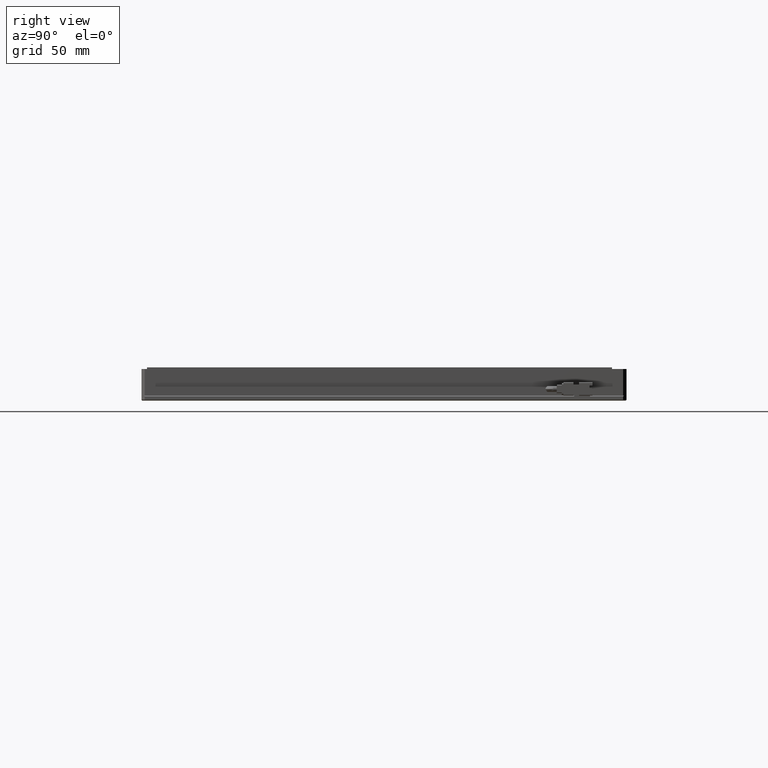
[diagram: clean part render]
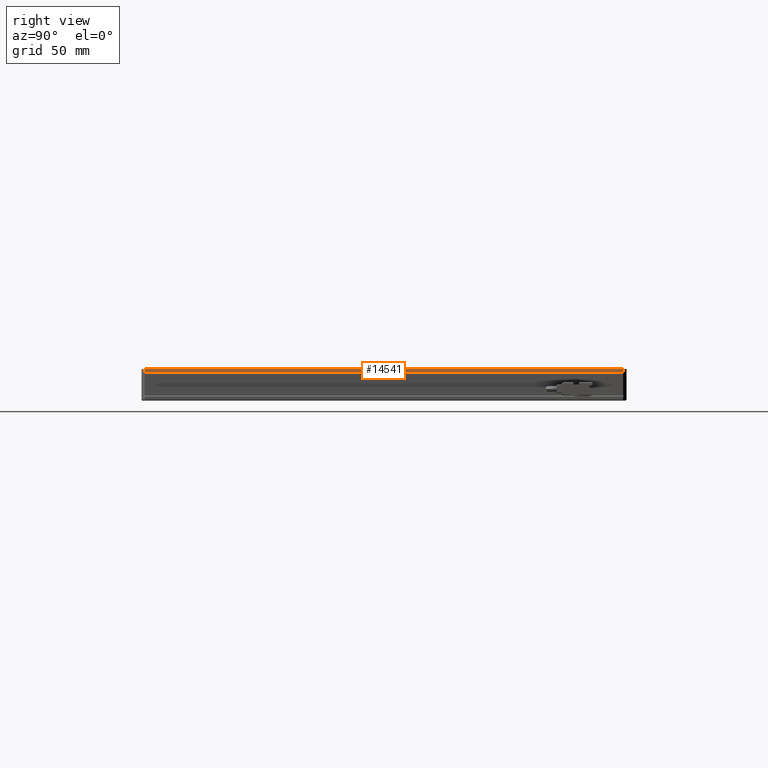
[diagram: same view with one face highlighted and labeled with its STEP entity id]
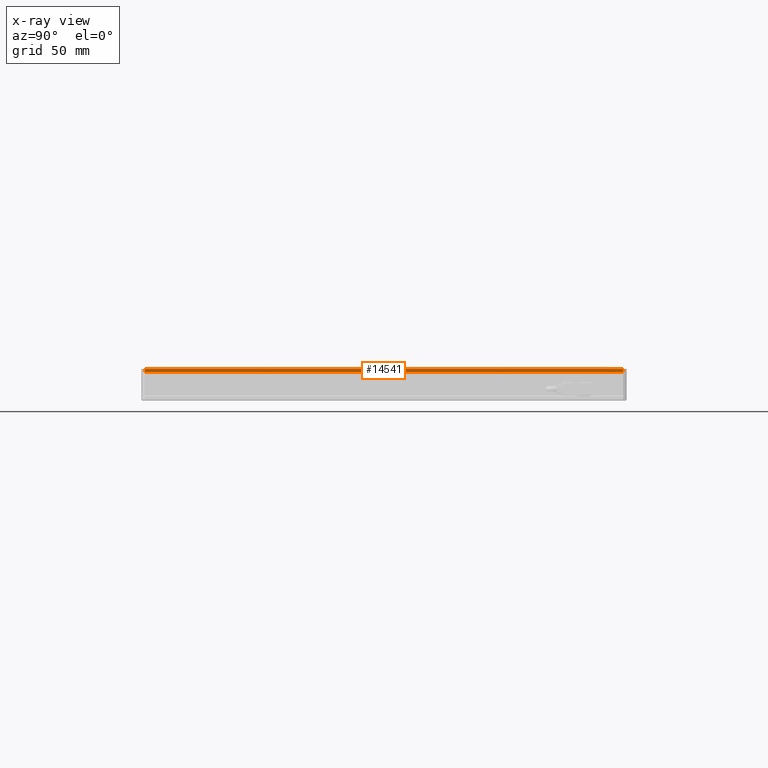
[diagram: x-ray of the same camera — body ghosted, the highlighted face saturated]
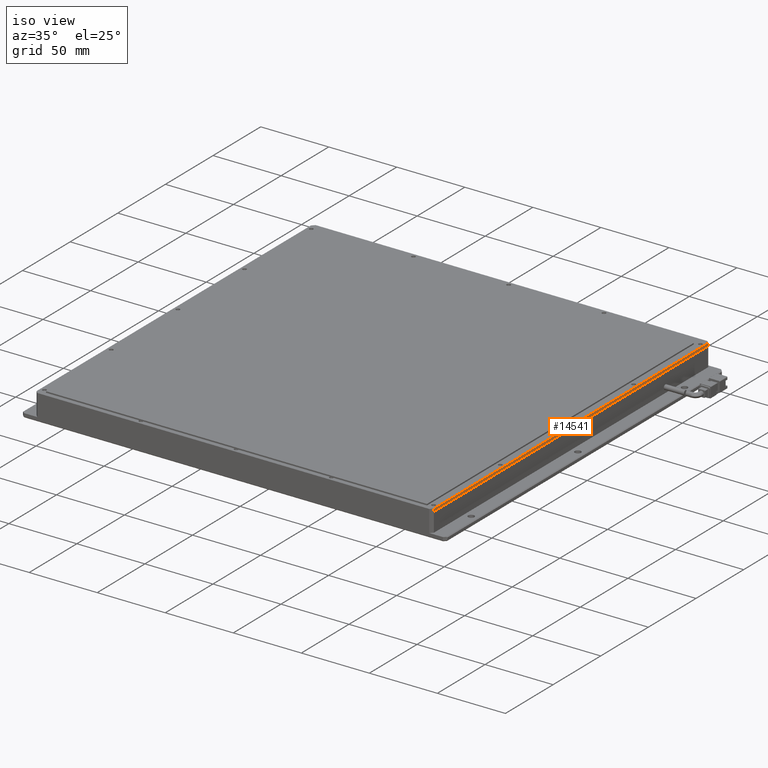
[diagram: same view with one face highlighted and labeled with its STEP entity id]
A machine part, right view. The second image highlights one B-rep face of the part: STEP entity #14541.
The next image is the same camera in x-ray: the body ghosted, the highlighted face saturated — about 0% of this face is hidden behind the body in this view.
A second angle (iso view) of the same face is appended — the face is thin or edge-on in the first view.
In plain terms, the highlighted planar face has unit normal (-1, 0, 0).
Its self-contained STEP definition (entity closure, byte-faithful):
#214 = LINE ( 'NONE', #14023, #6554 ) ;
#302 = CARTESIAN_POINT ( 'NONE',  ( 178.9193228736581300, -132.7301954307733900, 6.999999999971805700 ) ) ;
#550 = VECTOR ( 'NONE', #13134, 1000.000000000000000 ) ;
#943 = ORIENTED_EDGE ( 'NONE', *, *, #10104, .F. ) ;
#1177 = ORIENTED_EDGE ( 'NONE', *, *, #22288, .T. ) ;
#2661 = VERTEX_POINT ( 'NONE', #3936 ) ;
#3332 = EDGE_LOOP ( 'NONE', ( #1177, #17321, #943, #4284 ) ) ;
#3580 = PLANE ( 'NONE',  #4652 ) ;
#3807 = VERTEX_POINT ( 'NONE', #19174 ) ;
#3936 = CARTESIAN_POINT ( 'NONE',  ( 178.9193228736581600, 157.2698045692265800, 6.999999999971805700 ) ) ;
#4171 = LINE ( 'NONE', #23677, #12497 ) ;
#4284 = ORIENTED_EDGE ( 'NONE', *, *, #5050, .T. ) ;
#4652 = AXIS2_PLACEMENT_3D ( 'NONE', #16391, #5398, #18249 ) ;
#5050 = EDGE_CURVE ( 'NONE', #6667, #2661, #13156, .T. ) ;
#5398 = DIRECTION ( 'NONE',  ( -1.000000000000000000, 0.0000000000000000000, 0.0000000000000000000 ) ) ;
#5450 = LINE ( 'NONE', #23483, #14350 ) ;
#6554 = VECTOR ( 'NONE', #14191, 1000.000000000000000 ) ;
#6667 = VERTEX_POINT ( 'NONE', #7323 ) ;
#7323 = CARTESIAN_POINT ( 'NONE',  ( 178.9193228736581000, -130.7301954307733900, 6.999999999971805700 ) ) ;
#8157 = FACE_OUTER_BOUND ( 'NONE', #3332, .T. ) ;
#9124 = CARTESIAN_POINT ( 'NONE',  ( 178.9193228736581000, -130.7301954307734200, 8.999999999971805700 ) ) ;
#9220 = EDGE_CURVE ( 'NONE', #15739, #3807, #4171, .T. ) ;
#10104 = EDGE_CURVE ( 'NONE', #6667, #15739, #5450, .T. ) ;
#12497 = VECTOR ( 'NONE', #19779, 1000.000000000000000 ) ;
#13134 = DIRECTION ( 'NONE',  ( 0.0000000000000000000, 1.000000000000000000, 0.0000000000000000000 ) ) ;
#13156 = LINE ( 'NONE', #302, #550 ) ;
#14023 = CARTESIAN_POINT ( 'NONE',  ( 178.9193228736581600, 157.2698045692265800, 8.999999999971805700 ) ) ;
#14191 = DIRECTION ( 'NONE',  ( 0.0000000000000000000, 0.0000000000000000000, 1.000000000000000000 ) ) ;
#14350 = VECTOR ( 'NONE', #19803, 1000.000000000000000 ) ;
#14541 = ADVANCED_FACE ( 'NONE', ( #8157 ), #3580, .F. ) ;
#15739 = VERTEX_POINT ( 'NONE', #9124 ) ;
#16391 = CARTESIAN_POINT ( 'NONE',  ( 178.9193228736581300, 159.2698045692265800, 8.999999999971805700 ) ) ;
#17321 = ORIENTED_EDGE ( 'NONE', *, *, #9220, .F. ) ;
#18249 = DIRECTION ( 'NONE',  ( 0.0000000000000000000, 0.0000000000000000000, 1.000000000000000000 ) ) ;
#19174 = CARTESIAN_POINT ( 'NONE',  ( 178.9193228736581000, 157.2698045692266400, 8.999999999971805700 ) ) ;
#19779 = DIRECTION ( 'NONE',  ( 0.0000000000000000000, 1.000000000000000000, 0.0000000000000000000 ) ) ;
#19803 = DIRECTION ( 'NONE',  ( 0.0000000000000000000, 0.0000000000000000000, 1.000000000000000000 ) ) ;
#22288 = EDGE_CURVE ( 'NONE', #2661, #3807, #214, .T. ) ;
#23483 = CARTESIAN_POINT ( 'NONE',  ( 178.9193228736581300, -130.7301954307733600, 8.999999999971805700 ) ) ;
#23677 = CARTESIAN_POINT ( 'NONE',  ( 178.9193228736581300, 159.2698045692265800, 8.999999999971805700 ) ) ;